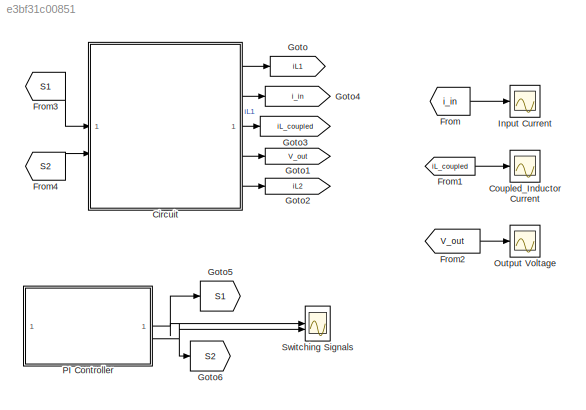
MODEL slx_e3bf31c00851
KIND model
CONFIG AbsTol = auto
CONFIG EnableMultiTasking = off
CONFIG FixedStep = 1e-6
CONFIG MaxStep = 1e-6
CONFIG MinStep = auto
CONFIG PreLoadFcn = L=32e-6;\nk=-1/3;\nM=  L*k \n%N=4 %nbre de spires\nrL=3.34e-3;\nV_dc=14.4;\nC=100e-6;\nr_load=5;
CONFIG RelTol = 1e-3
CONFIG SampleTimeConstraint = Unconstrained
CONFIG SolverName = ode1
CONFIG StartTime = 0.0
CONFIG StopTime = 1
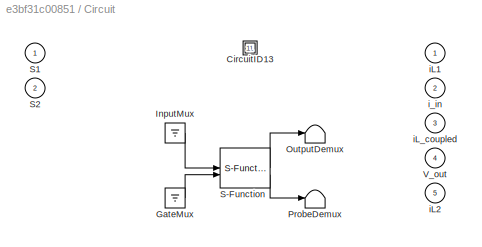
BLOCK [SubSystem] Circuit
  ClipboardFcn = plecs('sl', 212, 13);
  CopyFcn = plecs('sl', 203);
  DeleteFcn = plecs('sl', 205);
  DestroyFcn = plecs('sl', 207);
  ErrorFcn = plerrorfcn
  InitFcn = plecs('sl', 214);
  LoadFcn = plecs('sl', 200);
  NameChangeFcn = plecs('sl', 210);
  OpenFcn = plecs('sl', 202);
  PostSaveFcn = plecs('sl', 201);
  PreCopyFcn = plecs('sl', 216);
  PreSaveFcn = plecs('sl', 211);
  ShowPortLabels = FromPortBlockName
  StartFcn = plecs('sl', 208);
  StopFcn = plecs('sl', 209);
  UndoDeleteFcn = plecs('sl', 206);
BLOCK [SubSystem] Circuit/ CircuitID13 
BLOCK [Ground] Circuit/ GateMux 
BLOCK [Ground] Circuit/ InputMux 
BLOCK [Terminator] Circuit/ OutputDemux 
BLOCK [Terminator] Circuit/ ProbeDemux 
BLOCK [S-Function] Circuit/ S-Function 
  EnableBusSupport = off
  FunctionName = plecs
  SFcnIsStateOwnerBlock = off
  SFunctionDeploymentMode = off
BLOCK [Inport] Circuit/S1
  PortDimensions = 1
BLOCK [Inport] Circuit/S2
  Port = 2
  PortDimensions = 1
BLOCK [Outport] Circuit/V_out
  Port = 4
  PortDimensions = 1
BLOCK [Outport] Circuit/iL1
  PortDimensions = 1
BLOCK [Outport] Circuit/iL2
  Port = 5
  PortDimensions = 1
BLOCK [Outport] Circuit/iL_coupled
  Port = 3
  PortDimensions = 2
BLOCK [Outport] Circuit/i_in
  Port = 2
  PortDimensions = 1
BLOCK [Scope] Coupled_Inductor Current
  Floating = off
  NumInputPorts = 1
  ScopeSpecificationString = Simulink.scopes.TimeScopeBlockCfg('CurrentConfiguration', extmgr.ConfigurationSet(extmgr.Configuration('Core','General UI',true),extmgr.Configuration('Core','Source UI',true),extmgr.Configuration('Sources','WiredSimulink',true,'DataLogging',true,'DataLoggingVariableName','ScopeData1','DataLoggingSaveFormat','StructureWithTime'),extmgr.Configuration('Visuals','Time Domain',true,'SerializedDisplays'...<+1551ch>
BLOCK [From] From
  GotoTag = i_in
  TagVisibility = global
BLOCK [From] From1
  GotoTag = iL_coupled
  TagVisibility = global
BLOCK [From] From2
  GotoTag = V_out
  TagVisibility = global
BLOCK [From] From3
  GotoTag = S1
BLOCK [From] From4
  GotoTag = S2
BLOCK [Goto] Goto
  GotoTag = iL1
  TagVisibility = global
BLOCK [Goto] Goto1
  GotoTag = V_out
  TagVisibility = global
BLOCK [Goto] Goto2
  GotoTag = iL2
  TagVisibility = global
BLOCK [Goto] Goto3
  GotoTag = iL_coupled
  TagVisibility = global
BLOCK [Goto] Goto4
  GotoTag = i_in
  TagVisibility = global
BLOCK [Goto] Goto5
  GotoTag = S1
BLOCK [Goto] Goto6
  GotoTag = S2
BLOCK [Scope] Input Current
  Floating = off
  NumInputPorts = 1
  ScopeSpecificationString = Simulink.scopes.TimeScopeBlockCfg('CurrentConfiguration', extmgr.ConfigurationSet(extmgr.Configuration('Core','General UI',true),extmgr.Configuration('Core','Source UI',true),extmgr.Configuration('Sources','WiredSimulink',true,'DataLogging',true,'DataLoggingVariableName','iL1','DataLoggingSaveFormat','StructureWithTime'),extmgr.Configuration('Visuals','Time Domain',true,'SerializedDisplays',{struc...<+1528ch>
BLOCK [Scope] Output Voltage
  Floating = off
  NumInputPorts = 1
  ScopeSpecificationString = Simulink.scopes.TimeScopeBlockCfg('CurrentConfiguration', extmgr.ConfigurationSet(extmgr.Configuration('Core','General UI',true),extmgr.Configuration('Core','Source UI',true),extmgr.Configuration('Sources','WiredSimulink',true,'DataLogging',true,'DataLoggingVariableName','ScopeData3','DataLoggingSaveFormat','StructureWithTime'),extmgr.Configuration('Visuals','Time Domain',true,'SerializedDisplays'...<+1531ch>
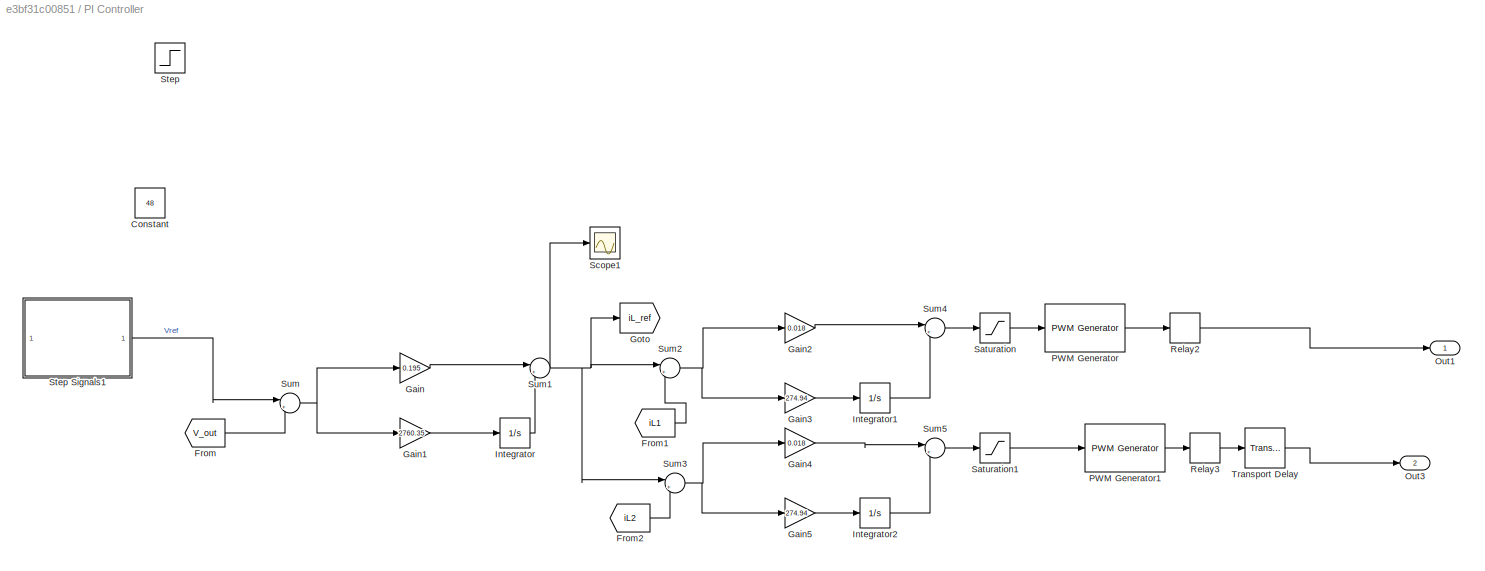
BLOCK [SubSystem] PI Controller
BLOCK [Constant] PI Controller/Constant
  Commented = on
  Value = 48
BLOCK [From] PI Controller/From
  GotoTag = V_out
  TagVisibility = global
BLOCK [From] PI Controller/From1
  GotoTag = iL1
  TagVisibility = global
BLOCK [From] PI Controller/From2
  GotoTag = iL2
  TagVisibility = global
BLOCK [Gain] PI Controller/Gain
  Gain = 0.195
BLOCK [Gain] PI Controller/Gain1
  Gain = 2760.35
BLOCK [Gain] PI Controller/Gain2
  Gain = 0.018
BLOCK [Gain] PI Controller/Gain3
  Gain = 274.94
BLOCK [Gain] PI Controller/Gain4
  Gain = 0.018
BLOCK [Gain] PI Controller/Gain5
  Gain = 274.94
BLOCK [Goto] PI Controller/Goto
  GotoTag = iL_ref
  TagVisibility = global
BLOCK [Integrator] PI Controller/Integrator
BLOCK [Integrator] PI Controller/Integrator1
BLOCK [Integrator] PI Controller/Integrator2
BLOCK [Outport] PI Controller/Out1
BLOCK [Outport] PI Controller/Out3
  Port = 2
BLOCK [Reference] PI Controller/PWM Generator  REF=eePwmGenerator/PWM Generator
  SourceBlock = eePwmGenerator/PWM Generator
  SourceType = PWM Generator
BLOCK [Reference] PI Controller/PWM Generator1  REF=eePwmGenerator/PWM Generator
  SourceBlock = eePwmGenerator/PWM Generator
  SourceType = PWM Generator
BLOCK [Relay] PI Controller/Relay2
BLOCK [Relay] PI Controller/Relay3
BLOCK [Saturate] PI Controller/Saturation
  LowerLimit = 0.1
  UpperLimit = 0.9
BLOCK [Saturate] PI Controller/Saturation1
  LowerLimit = 0.1
  UpperLimit = 0.9
BLOCK [Scope] PI Controller/Scope1
  Floating = off
  NumInputPorts = 1
  ScopeSpecificationString = Simulink.scopes.TimeScopeBlockCfg('CurrentConfiguration', extmgr.ConfigurationSet(extmgr.Configuration('Core','General UI',true),extmgr.Configuration('Core','Source UI',true),extmgr.Configuration('Sources','WiredSimulink',true,'DataLoggingVariableName','ScopeData1'),extmgr.Configuration('Visuals','Time Domain',true,'SerializedDisplays',{struct('MinYLimReal','7.31759','MaxYLimReal','27.74166','YLab...<+1417ch>
BLOCK [Step] PI Controller/Step
  After = 40
  Before = 48
  Commented = on
  SampleTime = 0
  Time = 0.06
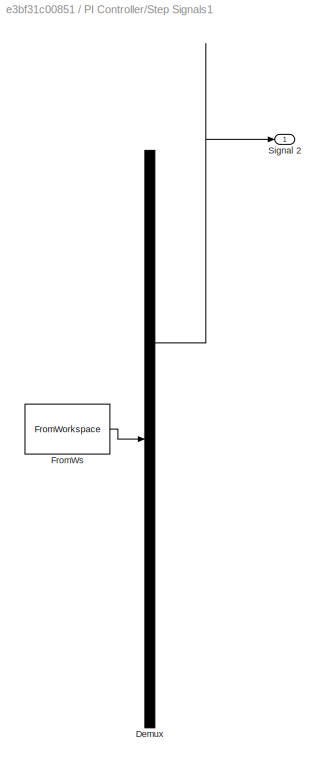
BLOCK [SubSystem] PI Controller/Step Signals1
  ClipboardFcn = sigbuilder_block('clipboard');
  CloseFcn = sigbuilder_block('close');
  ContinueFcn = sigbuilder_block('continue');
  CopyFcn = sigbuilder_block('copy');
  DeleteFcn = sigbuilder_block('delete');
  LoadFcn = sigbuilder_block('load');
  MaskHideContents = on
  ModelCloseFcn = sigbuilder_block('modelClose');
  NameChangeFcn = sigbuilder_block('namechange');
  OpenFcn = sigbuilder_block('open',[6 36 1428 675.75 ]);
  PauseFcn = sigbuilder_block('pause');
  PreSaveFcn = sigbuilder_block('preSave');
  StartFcn = sigbuilder_block('start');
  StopFcn = sigbuilder_block('stop');
  Tag = STV Subsys
BLOCK [Demux] PI Controller/Step Signals1/Demux
  DisplayOption = none
  Outputs = 1
  Tag = STV Demux
BLOCK [FromWorkspace] PI Controller/Step Signals1/FromWs
  Tag = STV FromWs
  VariableName = tuvar
BLOCK [Outport] PI Controller/Step Signals1/Signal 2
  Tag = STV Outport
BLOCK [Sum] PI Controller/Sum
  Inputs = |+-
BLOCK [Sum] PI Controller/Sum1
  Inputs = |++
BLOCK [Sum] PI Controller/Sum2
  Inputs = |+-
BLOCK [Sum] PI Controller/Sum3
  Inputs = |+-
BLOCK [Sum] PI Controller/Sum4
  Inputs = |++
BLOCK [Sum] PI Controller/Sum5
  Inputs = |++
BLOCK [TransportDelay] PI Controller/Transport Delay
  DelayTime = 1e-5
BLOCK [Scope] Switching Signals
  Floating = off
  NumInputPorts = 2
  ScopeSpecificationString = Simulink.scopes.TimeScopeBlockCfg('CurrentConfiguration', extmgr.ConfigurationSet(extmgr.Configuration('Core','General UI',true),extmgr.Configuration('Core','Source UI',true),extmgr.Configuration('Sources','WiredSimulink',true,'DataLoggingVariableName','ScopeData2'),extmgr.Configuration('Visuals','Time Domain',true,'SerializedDisplays',{struct('MinYLimReal','-0.125','MaxYLimReal','1.125','YLabelRe...<+2155ch>
LINE Circuit:1 -> Goto:1
LINE Circuit:2 -> Goto4:1
LINE Circuit:3 -> Goto3:1
LINE Circuit:4 -> Goto1:1
LINE Circuit:5 -> Goto2:1
LINE From1:1 -> Coupled_Inductor Current:1
LINE From2:1 -> Output Voltage:1
LINE From3:1 -> Circuit:1
LINE From4:1 -> Circuit:2
LINE From:1 -> Input Current:1
LINE PI Controller/From1:1 -> PI Controller/Sum2:2
LINE PI Controller/From2:1 -> PI Controller/Sum3:2
LINE PI Controller/From:1 -> PI Controller/Sum:2
LINE PI Controller/Gain1:1 -> PI Controller/Integrator:1
LINE PI Controller/Gain2:1 -> PI Controller/Sum4:1
LINE PI Controller/Gain3:1 -> PI Controller/Integrator1:1
LINE PI Controller/Gain4:1 -> PI Controller/Sum5:1
LINE PI Controller/Gain5:1 -> PI Controller/Integrator2:1
LINE PI Controller/Gain:1 -> PI Controller/Sum1:1
LINE PI Controller/Integrator1:1 -> PI Controller/Sum4:2
LINE PI Controller/Integrator2:1 -> PI Controller/Sum5:2
LINE PI Controller/Integrator:1 -> PI Controller/Sum1:2
LINE PI Controller/PWM Generator1:1 -> PI Controller/Relay3:1
LINE PI Controller/PWM Generator:1 -> PI Controller/Relay2:1
LINE PI Controller/Relay2:1 -> PI Controller/Out1:1
LINE PI Controller/Relay3:1 -> PI Controller/Transport Delay:1
LINE PI Controller/Saturation1:1 -> PI Controller/PWM Generator1:1
LINE PI Controller/Saturation:1 -> PI Controller/PWM Generator:1
LINE PI Controller/Step Signals1:1 -> PI Controller/Sum:1
NET PI Controller/Sum1:1 -> PI Controller/Goto:1, PI Controller/Scope1:1, PI Controller/Sum2:1, PI Controller/Sum3:1
NET PI Controller/Sum2:1 -> PI Controller/Gain2:1, PI Controller/Gain3:1
NET PI Controller/Sum3:1 -> PI Controller/Gain4:1, PI Controller/Gain5:1
LINE PI Controller/Sum4:1 -> PI Controller/Saturation:1
LINE PI Controller/Sum5:1 -> PI Controller/Saturation1:1
NET PI Controller/Sum:1 -> PI Controller/Gain1:1, PI Controller/Gain:1
LINE PI Controller/Transport Delay:1 -> PI Controller/Out3:1
NET PI Controller:1 -> Goto5:1, Switching Signals:1
NET PI Controller:2 -> Goto6:1, Switching Signals:2
note: NET lines group one-source signal fan-out (src -> all destinations, sorted); 1:1 wires keep LINE
